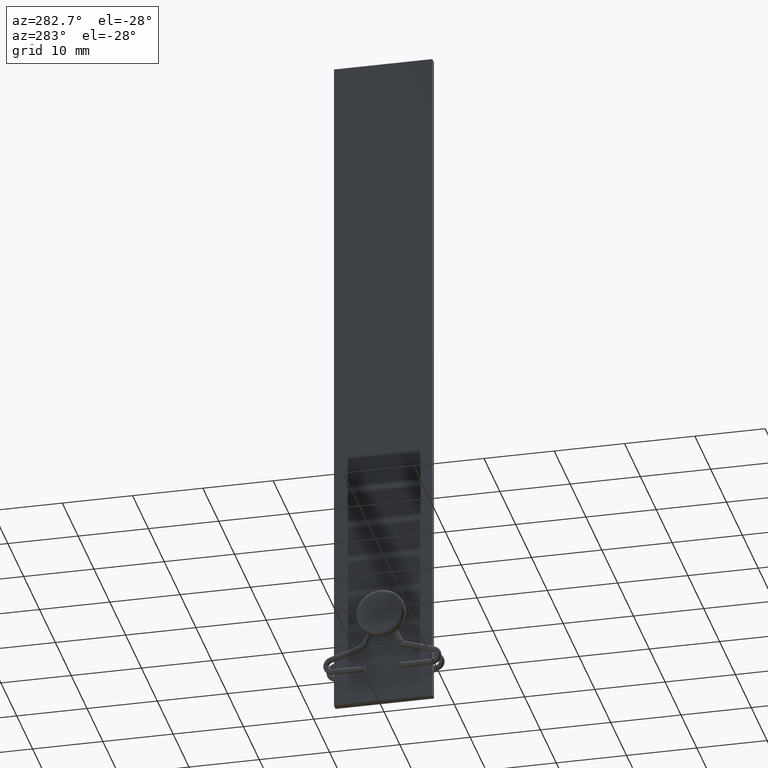
[diagram: clean part render]
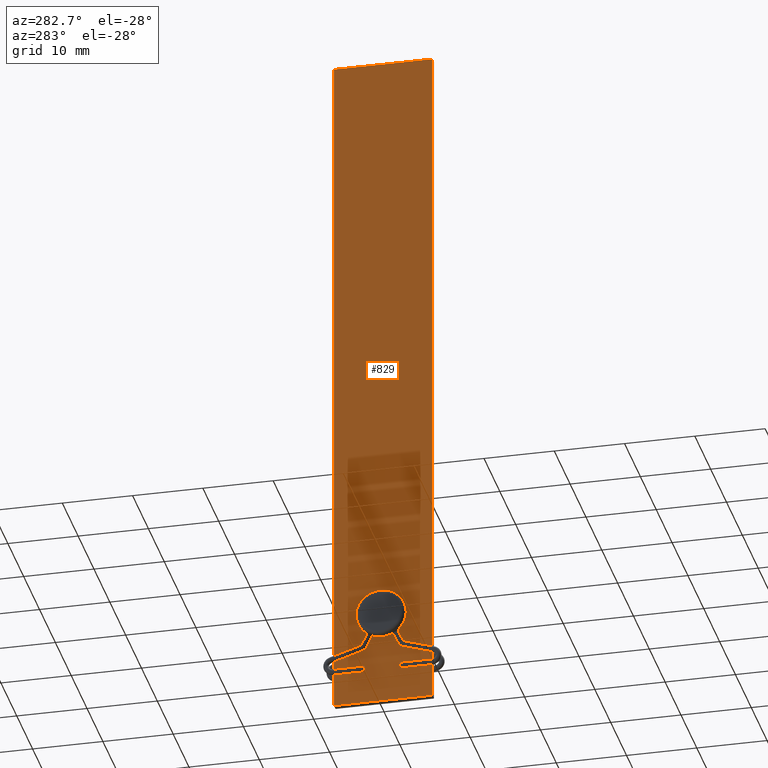
[diagram: same view with one face highlighted and labeled with its STEP entity id]
A machine part, auxiliary view. The second image highlights one B-rep face of the part: STEP entity #829.
In plain terms, the highlighted planar face has unit normal (1, 0, -0).
Its self-contained STEP definition (entity closure, byte-faithful):
#191 = CARTESIAN_POINT ( 'NONE',  ( -0.5000000000000007772, 7.000000000000000888, 100.0000000000000000 ) ) ;
#193 = VERTEX_POINT ( 'NONE', #274 ) ;
#196 = VERTEX_POINT ( 'NONE', #1645 ) ;
#212 = CARTESIAN_POINT ( 'NONE',  ( -0.5000000000000002220, 1.999999999999999556, 13.00000000000000000 ) ) ;
#246 = DIRECTION ( 'NONE',  ( -0.000000000000000000, -0.000000000000000000, -1.000000000000000000 ) ) ;
#272 = DIRECTION ( 'NONE',  ( -1.000000000000000000, -1.239088197126290817E-16, 0.000000000000000000 ) ) ;
#274 = CARTESIAN_POINT ( 'NONE',  ( -0.5000000000000007772, 7.000000000000000888, 0.000000000000000000 ) ) ;
#307 = ORIENTED_EDGE ( 'NONE', *, *, #1843, .F. ) ;
#321 = VERTEX_POINT ( 'NONE', #212 ) ;
#493 = VERTEX_POINT ( 'NONE', #1384 ) ;
#503 = FACE_BOUND ( 'NONE', #788, .T. ) ;
#716 = LINE ( 'NONE', #2861, #1675 ) ;
#788 = EDGE_LOOP ( 'NONE', ( #2314, #307 ) ) ;
#818 = CARTESIAN_POINT ( 'NONE',  ( -0.5000000000000007772, 7.000000000000000888, 0.000000000000000000 ) ) ;
#829 = ADVANCED_FACE ( 'NONE', ( #503, #1202 ), #1468, .F. ) ;
#916 = DIRECTION ( 'NONE',  ( 1.000000000000000000, 1.239088197126290817E-16, -0.000000000000000000 ) ) ;
#950 = CARTESIAN_POINT ( 'NONE',  ( -0.4999999999999990563, -6.999999999999999112, 100.0000000000000000 ) ) ;
#988 = CARTESIAN_POINT ( 'NONE',  ( -0.5000000000000000000, 6.195440985631451620E-17, 13.00000000000000000 ) ) ;
#1122 = VECTOR ( 'NONE', #3121, 1000.000000000000000 ) ;
#1132 = LINE ( 'NONE', #818, #1415 ) ;
#1200 = VECTOR ( 'NONE', #246, 1000.000000000000000 ) ;
#1202 = FACE_OUTER_BOUND ( 'NONE', #1510, .T. ) ;
#1275 = EDGE_CURVE ( 'NONE', #1666, #193, #716, .T. ) ;
#1296 = EDGE_CURVE ( 'NONE', #493, #321, #2073, .T. ) ;
#1326 = AXIS2_PLACEMENT_3D ( 'NONE', #191, #916, #1879 ) ;
#1384 = CARTESIAN_POINT ( 'NONE',  ( -0.4999999999999997780, -1.999999999999999556, 13.00000000000000000 ) ) ;
#1415 = VECTOR ( 'NONE', #2505, 1000.000000000000000 ) ;
#1431 = LINE ( 'NONE', #2150, #1122 ) ;
#1444 = LINE ( 'NONE', #950, #1200 ) ;
#1468 = PLANE ( 'NONE',  #1326 ) ;
#1501 = AXIS2_PLACEMENT_3D ( 'NONE', #1888, #2402, #1638 ) ;
#1510 = EDGE_LOOP ( 'NONE', ( #2803, #2436, #3122, #3016 ) ) ;
#1604 = CIRCLE ( 'NONE', #1501, 1.999999999999999556 ) ;
#1638 = DIRECTION ( 'NONE',  ( -1.084202172485504681E-16, 1.000000000000000000, 0.000000000000000000 ) ) ;
#1645 = CARTESIAN_POINT ( 'NONE',  ( -0.4999999999999990563, -6.999999999999999112, 0.000000000000000000 ) ) ;
#1666 = VERTEX_POINT ( 'NONE', #2265 ) ;
#1675 = VECTOR ( 'NONE', #2931, 1000.000000000000000 ) ;
#1801 = EDGE_CURVE ( 'NONE', #1875, #196, #1444, .T. ) ;
#1843 = EDGE_CURVE ( 'NONE', #321, #493, #1604, .T. ) ;
#1875 = VERTEX_POINT ( 'NONE', #2339 ) ;
#1879 = DIRECTION ( 'NONE',  ( -1.239088197126290817E-16, 1.000000000000000000, 0.000000000000000000 ) ) ;
#1888 = CARTESIAN_POINT ( 'NONE',  ( -0.5000000000000000000, 6.195440985631451620E-17, 13.00000000000000000 ) ) ;
#1957 = EDGE_CURVE ( 'NONE', #1666, #1875, #1431, .T. ) ;
#2073 = CIRCLE ( 'NONE', #2782, 1.999999999999999556 ) ;
#2150 = CARTESIAN_POINT ( 'NONE',  ( -0.5000000000000007772, 7.000000000000000888, 100.0000000000000000 ) ) ;
#2232 = EDGE_CURVE ( 'NONE', #193, #196, #1132, .T. ) ;
#2265 = CARTESIAN_POINT ( 'NONE',  ( -0.5000000000000007772, 7.000000000000000888, 100.0000000000000000 ) ) ;
#2314 = ORIENTED_EDGE ( 'NONE', *, *, #1296, .F. ) ;
#2339 = CARTESIAN_POINT ( 'NONE',  ( -0.4999999999999990563, -6.999999999999999112, 100.0000000000000000 ) ) ;
#2402 = DIRECTION ( 'NONE',  ( -1.000000000000000000, -1.239088197126290817E-16, 0.000000000000000000 ) ) ;
#2436 = ORIENTED_EDGE ( 'NONE', *, *, #1801, .F. ) ;
#2505 = DIRECTION ( 'NONE',  ( 1.239088197126290817E-16, -1.000000000000000000, 0.000000000000000000 ) ) ;
#2782 = AXIS2_PLACEMENT_3D ( 'NONE', #988, #272, #2881 ) ;
#2803 = ORIENTED_EDGE ( 'NONE', *, *, #2232, .T. ) ;
#2861 = CARTESIAN_POINT ( 'NONE',  ( -0.5000000000000007772, 7.000000000000000888, 100.0000000000000000 ) ) ;
#2881 = DIRECTION ( 'NONE',  ( -1.084202172485504681E-16, 1.000000000000000000, 0.000000000000000000 ) ) ;
#2931 = DIRECTION ( 'NONE',  ( -0.000000000000000000, -0.000000000000000000, -1.000000000000000000 ) ) ;
#3016 = ORIENTED_EDGE ( 'NONE', *, *, #1275, .T. ) ;
#3121 = DIRECTION ( 'NONE',  ( 1.239088197126290817E-16, -1.000000000000000000, 0.000000000000000000 ) ) ;
#3122 = ORIENTED_EDGE ( 'NONE', *, *, #1957, .F. ) ;